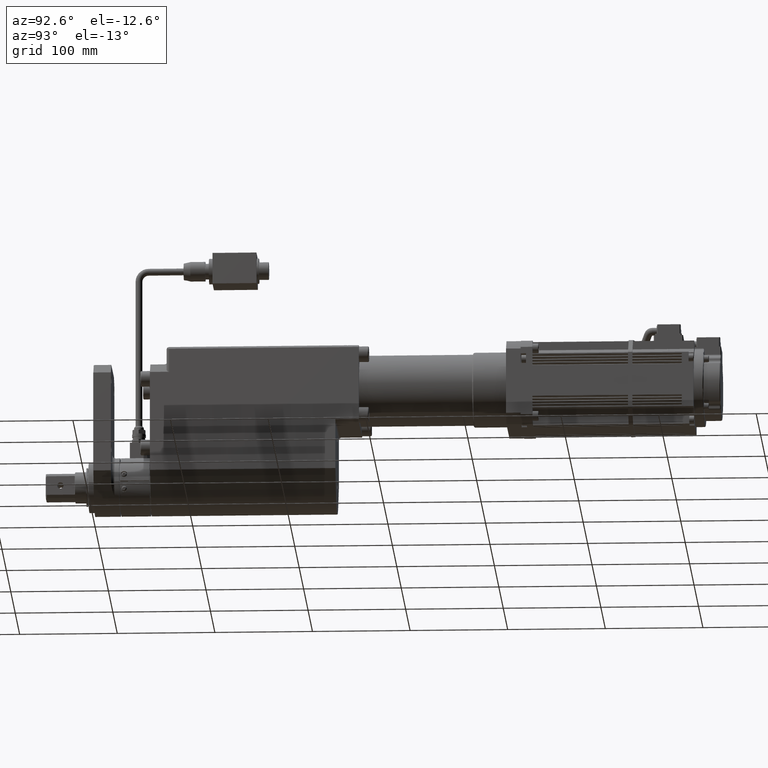
[diagram: clean part render]
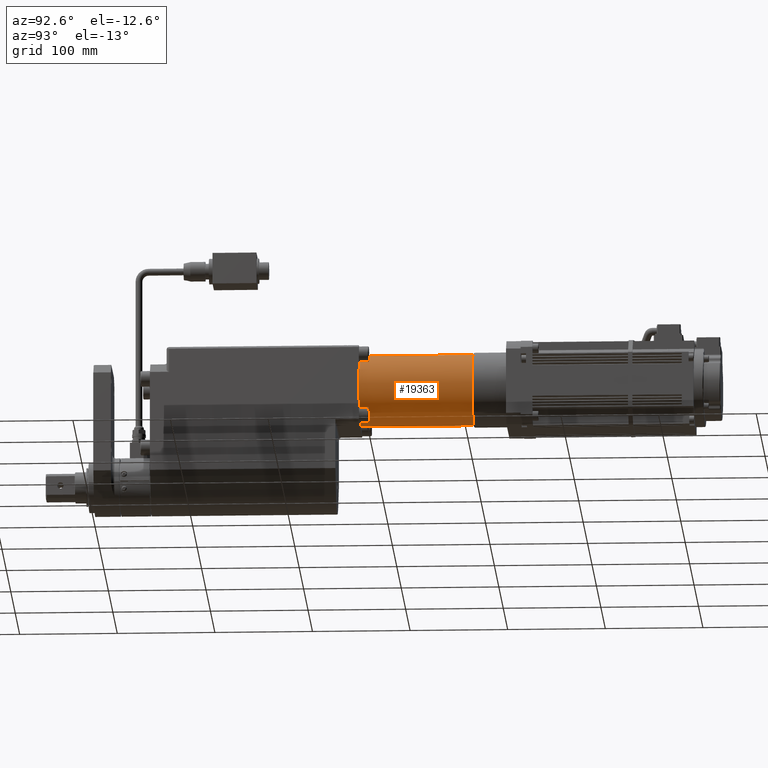
[diagram: same view with one face highlighted and labeled with its STEP entity id]
A machine part, auxiliary view. The second image highlights one B-rep face of the part: STEP entity #19363.
In plain terms, the highlighted cylindrical surface (bore or boss wall) has radius 36.5 mm, axis along (0, -1, -0).
Its self-contained STEP definition (entity closure, byte-faithful):
#1637=FACE_OUTER_BOUND('',#2776,.T.);
#2776=EDGE_LOOP('',(#14421,#14422,#14423,#14424));
#3894=CIRCLE('',#20768,36.5);
#3895=CIRCLE('',#20769,36.5);
#4823=LINE('',#30527,#6581);
#6581=VECTOR('',#23707,36.5);
#8527=VERTEX_POINT('',#30524);
#8528=VERTEX_POINT('',#30526);
#10706=EDGE_CURVE('',#8527,#8527,#3894,.T.);
#10707=EDGE_CURVE('',#8527,#8528,#4823,.T.);
#10708=EDGE_CURVE('',#8528,#8528,#3895,.T.);
#14421=ORIENTED_EDGE('',*,*,#10706,.F.);
#14422=ORIENTED_EDGE('',*,*,#10707,.T.);
#14423=ORIENTED_EDGE('',*,*,#10708,.T.);
#14424=ORIENTED_EDGE('',*,*,#10707,.F.);
#18876=CYLINDRICAL_SURFACE('',#20767,36.5);
#19363=ADVANCED_FACE('',(#1637),#18876,.T.);
#20767=AXIS2_PLACEMENT_3D('',#30523,#23703,#23704);
#20768=AXIS2_PLACEMENT_3D('',#30525,#23705,#23706);
#20769=AXIS2_PLACEMENT_3D('',#30528,#23708,#23709);
#23703=DIRECTION('center_axis',(4.56060770382725E-16,-1.,-2.38708113400732E-16));
#23704=DIRECTION('ref_axis',(1.,4.56060770382724E-16,4.44089209850062E-16));
#23705=DIRECTION('center_axis',(4.56060770382725E-16,-1.,-2.38708113400732E-16));
#23706=DIRECTION('ref_axis',(4.44089209850062E-16,2.38708113400732E-16,
-1.));
#23707=DIRECTION('',(-4.56060770382724E-16,1.,2.38708113400732E-16));
#23708=DIRECTION('center_axis',(4.56060770382725E-16,-1.,-2.38708113400732E-16));
#23709=DIRECTION('ref_axis',(4.44089209850062E-16,2.38708113400732E-16,
-1.));
#30523=CARTESIAN_POINT('Origin',(8.47816999893393E-14,330.,98.3499999999998));
#30524=CARTESIAN_POINT('',(-36.4999999999999,272.,98.3499999999997));
#30525=CARTESIAN_POINT('Origin',(1.11233224671537E-13,272.,98.3499999999998));
#30526=CARTESIAN_POINT('',(-36.4999999999999,388.,98.3499999999998));
#30527=CARTESIAN_POINT('',(-36.4999999999999,330.,98.3499999999998));
#30528=CARTESIAN_POINT('Origin',(5.83301753071412E-14,388.,98.3499999999998));